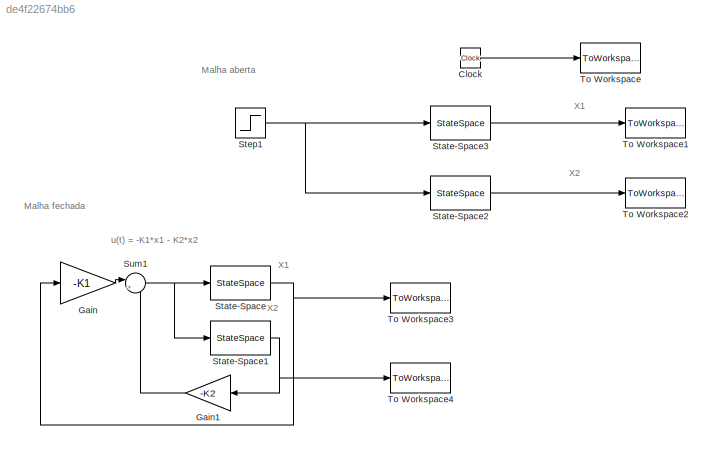
MODEL slx_de4f22674bb6
KIND model
CONFIG AbsTol = auto
CONFIG EnableMultiTasking = on
CONFIG FixedStep = auto
CONFIG MaxStep = auto
CONFIG MinStep = auto
CONFIG RelTol = 1e-3
CONFIG SampleTimeConstraint = Unconstrained
CONFIG Solver = ode45
CONFIG SolverName = ode45
CONFIG StartTime = 0.0
CONFIG StopTime = 4
BLOCK [Clock] Clock
BLOCK [Gain] Gain
  Gain = -K1
  OutDataTypeStr = Inherit: Inherit via internal rule
  ParamDataTypeStr = Inherit: Inherit via internal rule
  SaturateOnIntegerOverflow = off
BLOCK [Gain] Gain1
  Gain = -K2
  OutDataTypeStr = Inherit: Inherit via internal rule
  ParamDataTypeStr = Inherit: Inherit via internal rule
  SaturateOnIntegerOverflow = off
BLOCK [StateSpace] State-Space
  A = a
  B = b
  C = [1 0]
  D = 0
  InitialCondition = x1_ini
  Ports = [1, 1]
BLOCK [StateSpace] State-Space1
  A = a
  B = b
  C = [0 1]
  D = 0
  InitialCondition = x2_ini
  Ports = [1, 1]
BLOCK [StateSpace] State-Space2
  A = a
  B = b
  C = [0 1]
  D = 0
  InitialCondition = 0.05
  Ports = [1, 1]
BLOCK [StateSpace] State-Space3
  A = a
  B = b
  C = [1 0]
  D = 0
  InitialCondition = 0.05
  Ports = [1, 1]
BLOCK [Step] Step1
  After = 0
  SampleTime = 0
  Time = 0
BLOCK [Sum] Sum1
  IconShape = round
  InputSameDT = off
  Inputs = |++
  OutDataTypeStr = Inherit: Inherit via internal rule
  Ports = [2, 1]
  SaturateOnIntegerOverflow = off
BLOCK [ToWorkspace] To Workspace
  MaxDataPoints = inf
  Ports = [1]
  SampleTime = -1
  VariableName = tempo
BLOCK [ToWorkspace] To Workspace1
  MaxDataPoints = inf
  Ports = [1]
  SampleTime = -1
  VariableName = x1
BLOCK [ToWorkspace] To Workspace2
  MaxDataPoints = inf
  Ports = [1]
  SampleTime = -1
  VariableName = x2
BLOCK [ToWorkspace] To Workspace3
  MaxDataPoints = inf
  Ports = [1]
  SampleTime = -1
  VariableName = ControlX1
BLOCK [ToWorkspace] To Workspace4
  MaxDataPoints = inf
  Ports = [1]
  SampleTime = -1
  VariableName = ControlX2
ANNOTATION (root): Malha aberta
ANNOTATION (root): Malha fechada
ANNOTATION (root): X1
ANNOTATION (root): X2
ANNOTATION (root): u(t) = -K1*x1 - K2*x2
LINE Clock:1 -> To Workspace:1
LINE Gain1:1 -> Sum1:2
LINE Gain:1 -> Sum1:1
NET State-Space1:1 -> Gain1:1, To Workspace4:1
LINE State-Space2:1 -> To Workspace2:1
LINE State-Space3:1 -> To Workspace1:1
NET State-Space:1 -> Gain:1, To Workspace3:1
NET Step1:1 -> State-Space2:1, State-Space3:1
NET Sum1:1 -> State-Space1:1, State-Space:1
note: NET lines group one-source signal fan-out (src -> all destinations, sorted); 1:1 wires keep LINE
